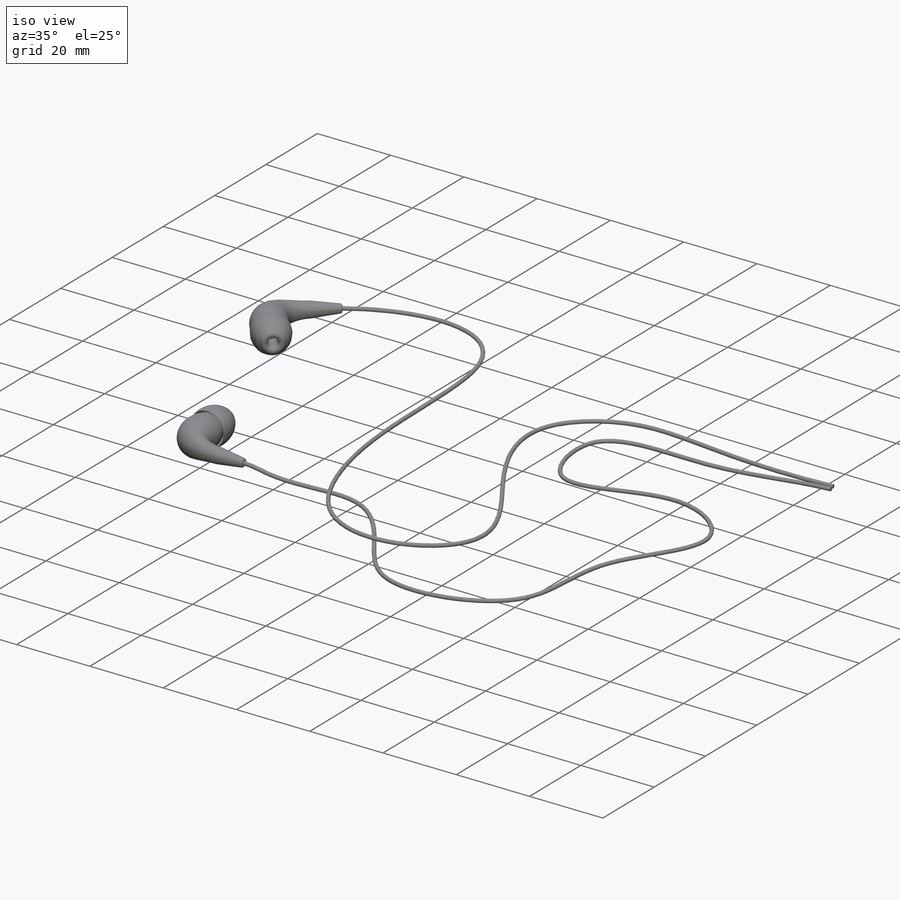
[diagram: iso view]
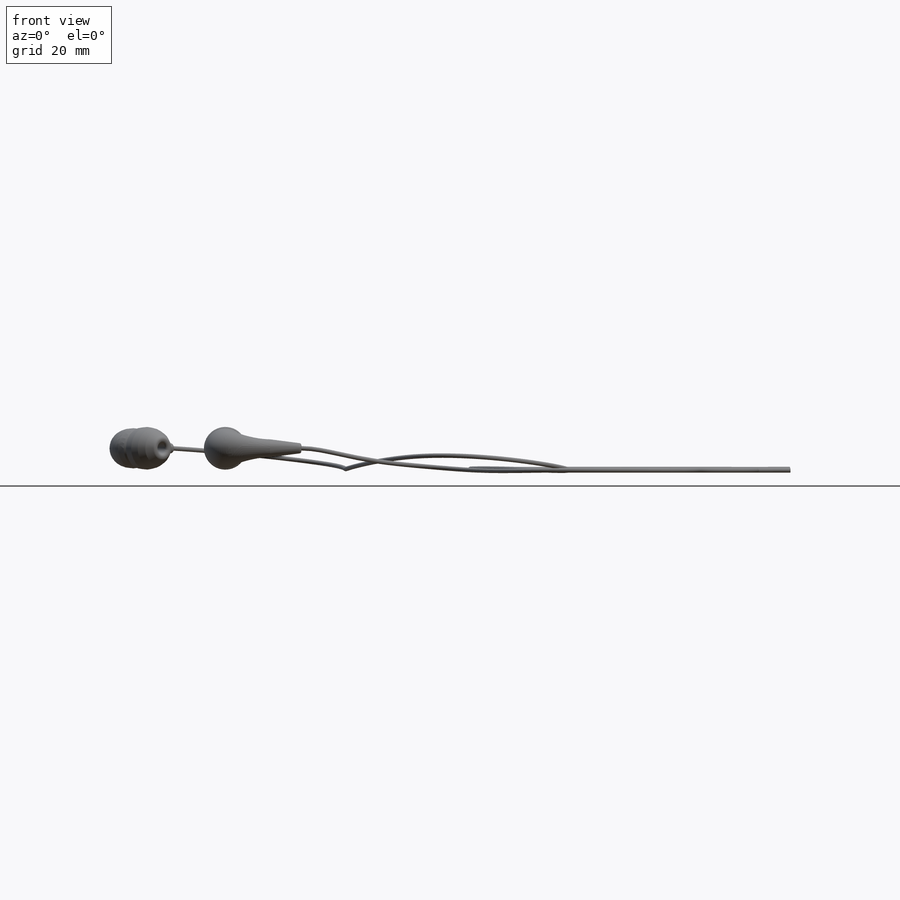
[diagram: front view]
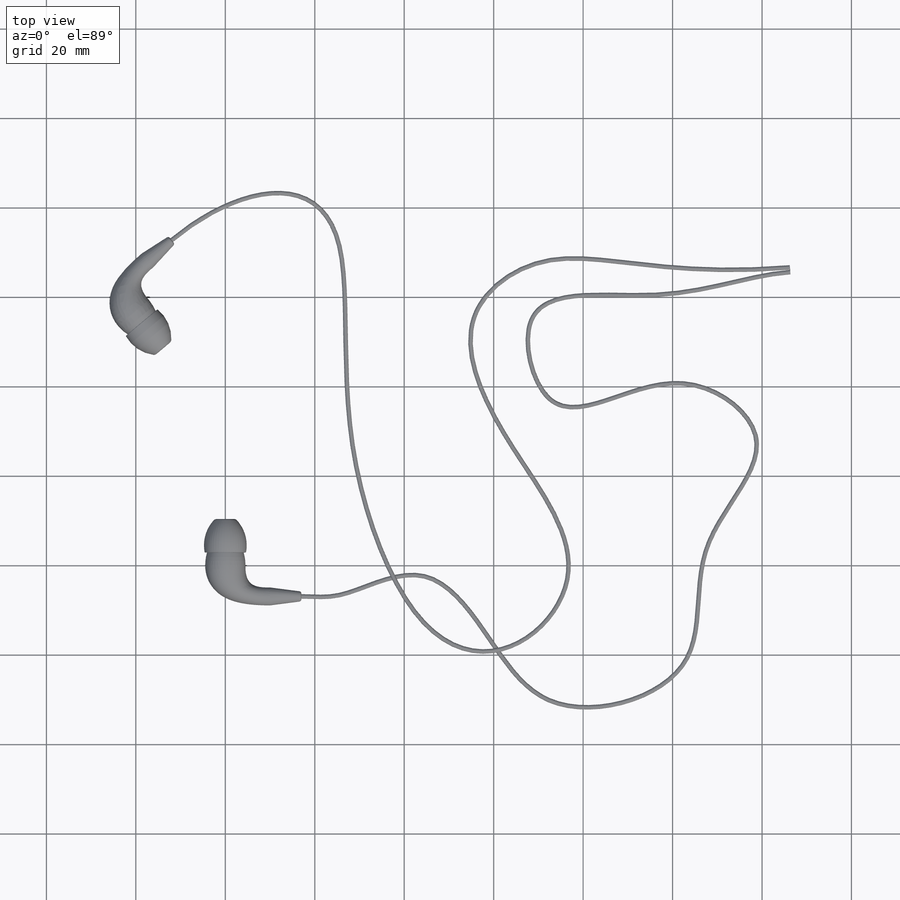
[diagram: top view]
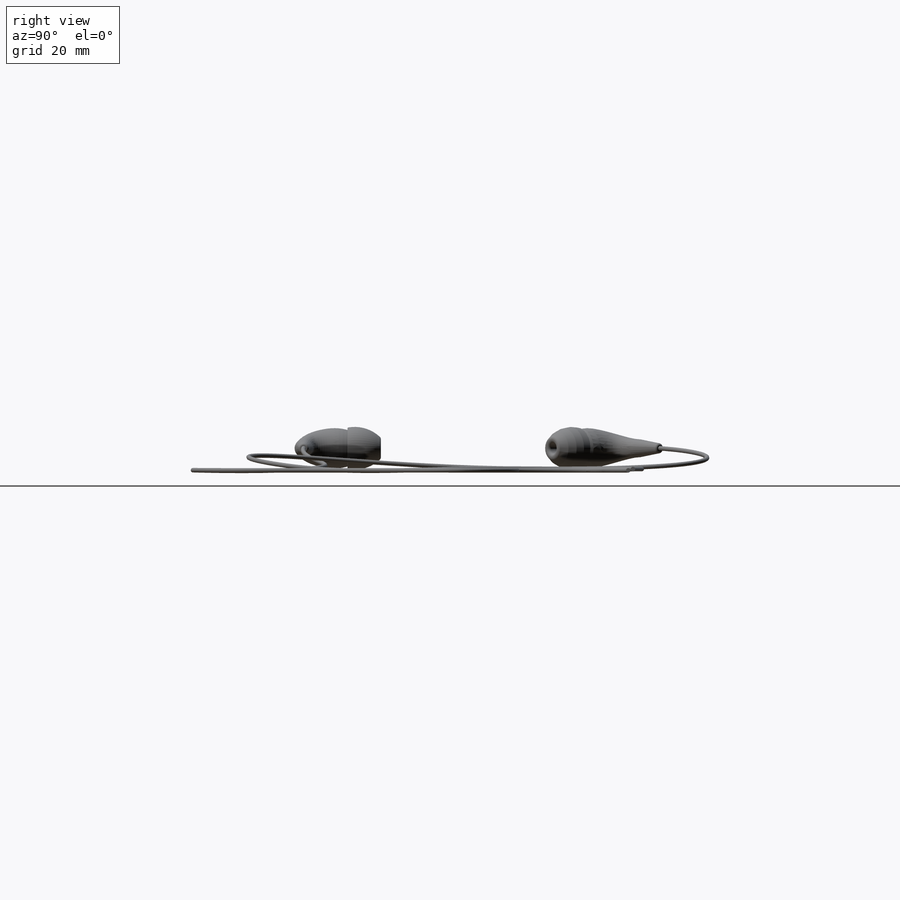
[diagram: right view]
SOLIDWORKS PART (.sldprt)
format: sldprt  version: not decoded by parser v0  size: 996,864 bytes
history: native  units: mm
features: sketch x18, plane x8, revolve x6, fillet x4, sweep x3, material x1, mirror x1, cut_extrude x1 (+13 scaffold rows collapsed)
feature tree (55):
  scaffold x13  (default folders/planes/origin — collapsed)
  material  "Material <não especificado>"
  plane  "Plano frontal"
  plane  "Plano superior"
  plane  "Plano direito"
  sketch  "Esboço1"  dims[D1=9.0mm]
  plane  "Plano1"  Offset=10mm
  sketch  "Esboço2"  dims[D1=4.0mm D2=7.0mm]
  sketch  "Esboço3"
  sketch  "Esboço4"  dims[D1=7.0mm D2=2.2mm]
  revolve  "Revolução1"  Angle=360deg
  sketch  "Esboço5"  dims[D2=10.0mm D1=5.0mm]
  revolve  "Revolução3"  Angle=360deg
  fillet  "Filete1"  Radius=0.5mm
  sketch  "Esboço6"  dims[c1.D1=0.5mm c1.D2=8.0mm c1.D7=0.15mm c1.D3=3.0mm c1.D4=5.0mm c1.D5=2.0mm c2.D7=9.0mm c2.D6=0.3mm]
  revolve  "Revolução4"  Angle=360deg
  sketch  "3DSketch1"
  sketch  "Esboço7"  dims[D1=1.0mm]
  sweep  "Varredura1"
  sketch  "Esboço8"
  plane  "Plano2"
  plane  "Plano3"  Offset=30mm
  mirror  "Espelhar1"
  sketch  "Esboço9"
  sketch  "3DSketch3"
  sketch  "Esboço10"  dims[D1=1.0mm]
  sweep  "Varredura2"
  plane  "Plano4"  Offset=4.8mm
  sketch  "Esboço11"  dims[c1.D1=0.1mm c1.D2=3.0mm c1.D3=15.0mm c2.D2=3.0mm]
  revolve  "Revolução5"  Angle=360deg
  fillet  "Filete2"  Radius=0.1mm
  sketch  "Esboço12"  dims[D1=15.0mm D2=3.0mm]
  revolve  "Revolução6"  Angle=360deg
  fillet  "Filete3"  Radius=0.1mm
  sketch  "Esboço13"  dims[D2=1.0mm D1=5.0mm]
  cut_extrude  "Extrusão1"  [1 undecoded]
  sketch  "3DSketch4"
  sketch  "Esboço14"  dims[D1=1.0mm]
  sweep  "Varredura3"
  plane  "Plano5"
  sketch  "Esboço15"  dims[c1.D6=0.5mm c1.D1=4.0mm c1.D2=~13.221459mm c1.D3=8.0mm c1.D4=1.5mm c1.D5=~3.759815mm c2.D5=10.0deg]
  revolve  "Revolução7"  Angle=360deg
  fillet  "Filete4"  Radius=0.1mm
decode coverage: 22 of 33 modeling features carry decoded parameters
note: ~ marks probable driven/reference dimensions
note: 1 parameter value undecoded
note: suppression state not decoded; provenance and decode notes live in map.json
